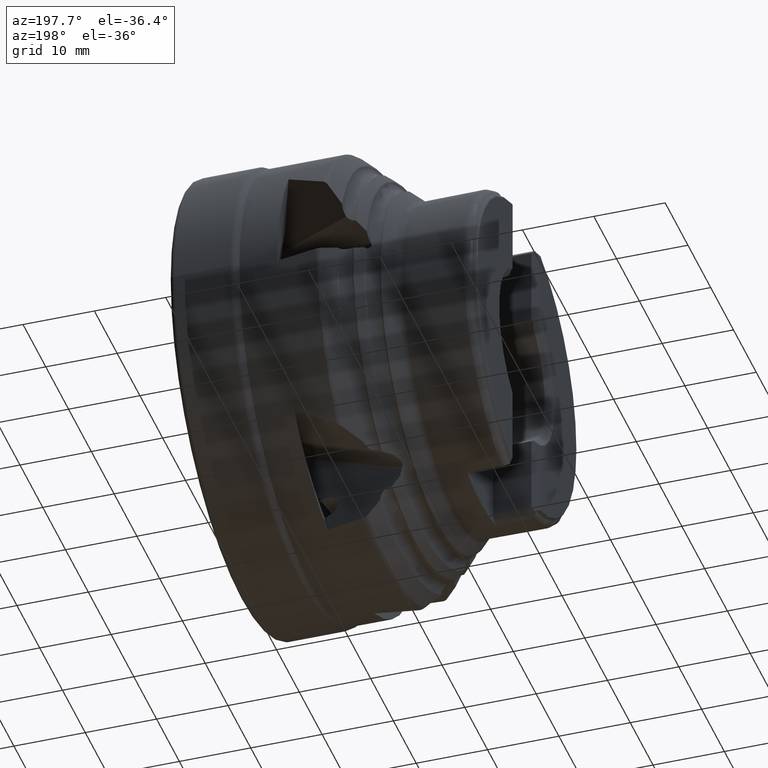
[diagram: clean part render]
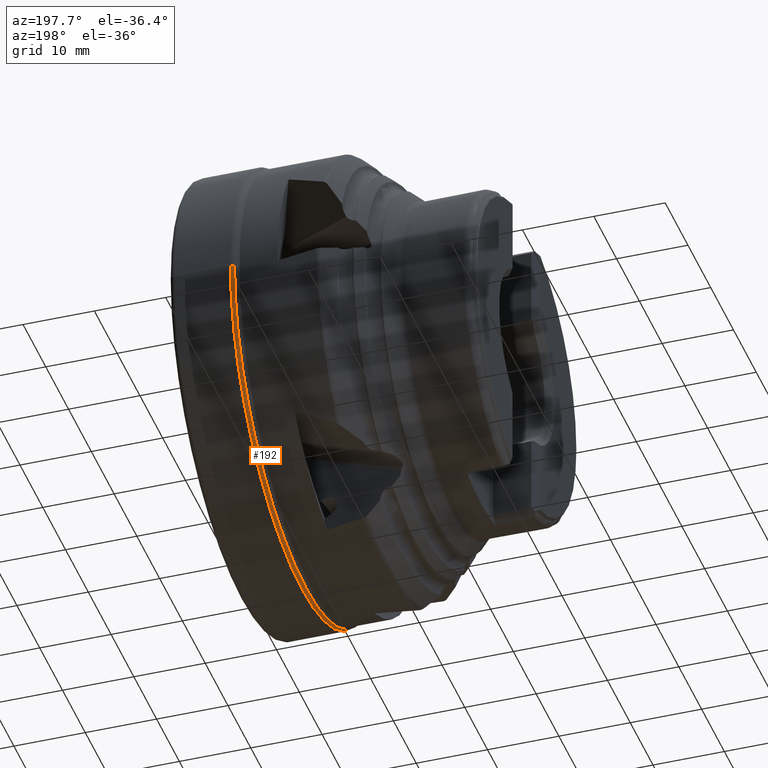
[diagram: same view with one face highlighted and labeled with its STEP entity id]
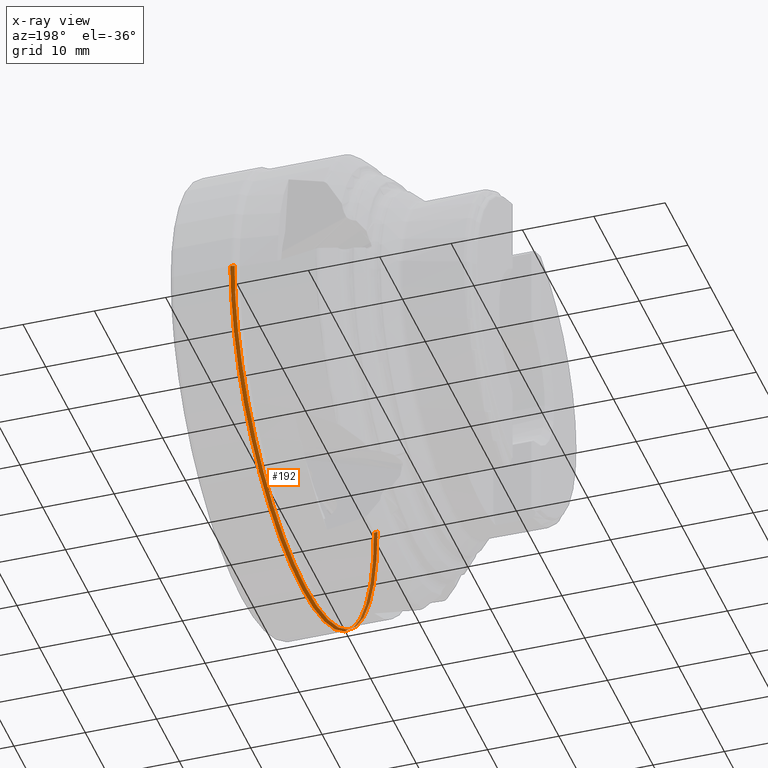
[diagram: x-ray of the same camera — body ghosted, the highlighted face saturated]
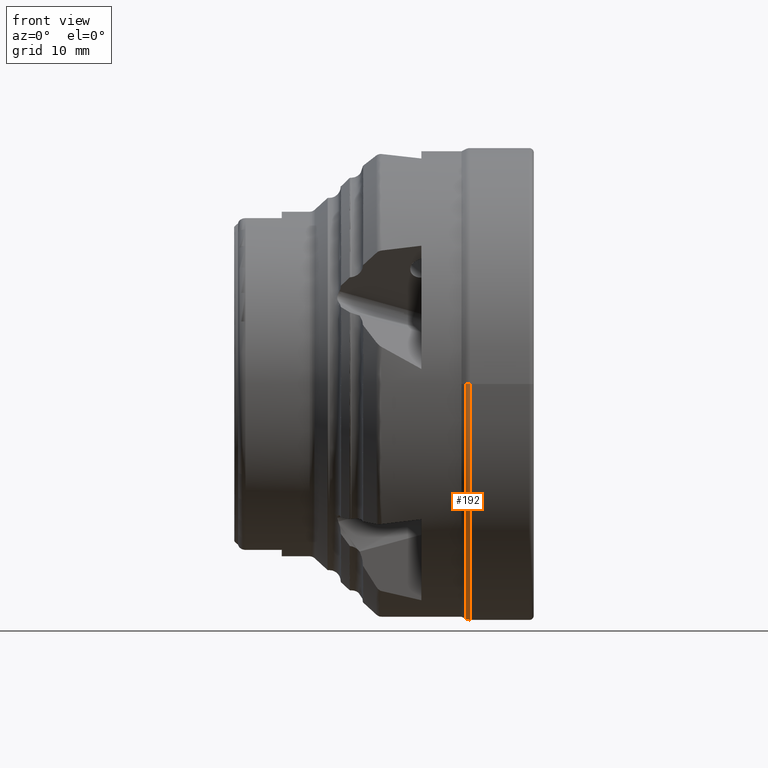
[diagram: same view with one face highlighted and labeled with its STEP entity id]
A machine part, auxiliary view. The second image highlights one B-rep face of the part: STEP entity #192.
The next image is the same camera in x-ray: the body ghosted, the highlighted face saturated — about 16% of this face is hidden behind the body in this view.
A second angle (front view) of the same face is appended — the face is thin or edge-on in the first view.
In plain terms, the highlighted toroidal blend (fillet) surface has major radius 30.3082 mm and minor (blend) radius 1.1918 mm.
Its self-contained STEP definition (entity closure, byte-faithful):
#25 = EDGE_CURVE ( 'NONE', #711, #289, #10463, .T. ) ;
#26 = EDGE_CURVE ( 'NONE', #286, #285, #10472, .T. ) ;
#192 = ADVANCED_FACE ( 'NONE', ( #4185 ), #4226, .T. ) ;
#285 = VERTEX_POINT ( 'NONE', #4743 ) ;
#286 = VERTEX_POINT ( 'NONE', #4744 ) ;
#289 = VERTEX_POINT ( 'NONE', #4747 ) ;
#711 = VERTEX_POINT ( 'NONE', #4807 ) ;
#957 = EDGE_CURVE ( 'NONE', #711, #286, #4330, .T. ) ;
#958 = EDGE_CURVE ( 'NONE', #289, #285, #4336, .T. ) ;
#3096 = EDGE_LOOP ( 'NONE', ( #10731, #10732, #10733, #10734 ) ) ;
#3809 = CARTESIAN_POINT ( 'NONE',  ( -7.316603860505854800, -1.584662297733472800E-015, 0.0000000000000000000 ) ) ;
#3810 = DIRECTION ( 'NONE',  ( 1.000000000000000000, 1.208501380087266900E-016, -0.0000000000000000000 ) ) ;
#3811 = DIRECTION ( 'NONE',  ( -1.105863803725372900E-016, 1.000000000000000000, 0.0000000000000000000 ) ) ;
#3813 = CARTESIAN_POINT ( 'NONE',  ( -6.781626860395060200, -1.520010253438588900E-015, 0.0000000000000000000 ) ) ;
#3814 = DIRECTION ( 'NONE',  ( 1.000000000000000000, 1.208501380087266900E-016, -0.0000000000000000000 ) ) ;
#3815 = DIRECTION ( 'NONE',  ( -1.101411730778924900E-016, 1.000000000000000000, 0.0000000000000000000 ) ) ;
#4183 = DIRECTION ( 'NONE',  ( 1.000000000000000000, 1.208501380087266900E-016, -0.0000000000000000000 ) ) ;
#4185 = FACE_OUTER_BOUND ( 'NONE', #3096, .T. ) ;
#4186 = CARTESIAN_POINT ( 'NONE',  ( -6.781626860395061100, 0.0000000000000000000, 0.0000000000000000000 ) ) ;
#4188 = DIRECTION ( 'NONE',  ( -1.208501380087266900E-016, 1.000000000000000000, 0.0000000000000000000 ) ) ;
#4226 = TOROIDAL_SURFACE ( 'NONE', #4228, 30.30817691498815600, 1.191823085011844800 ) ;
#4228 = AXIS2_PLACEMENT_3D ( 'NONE', #4186, #4183, #4188 ) ;
#4330 = CIRCLE ( 'NONE', #4337, 1.191823085011843000 ) ;
#4336 = CIRCLE ( 'NONE', #4339, 1.191823085011844500 ) ;
#4337 = AXIS2_PLACEMENT_3D ( 'NONE', #4925, #4926, #4927 ) ;
#4339 = AXIS2_PLACEMENT_3D ( 'NONE', #4929, #4930, #4931 ) ;
#4743 = CARTESIAN_POINT ( 'NONE',  ( -6.781626860395063800, 31.50000000000000000, 0.0000000000000000000 ) ) ;
#4744 = CARTESIAN_POINT ( 'NONE',  ( -6.781626860395056700, -31.50000000000000000, 3.857637417314163500E-015 ) ) ;
#4747 = CARTESIAN_POINT ( 'NONE',  ( -7.316603860505858300, 31.37318483764395400, 0.0000000000000000000 ) ) ;
#4807 = CARTESIAN_POINT ( 'NONE',  ( -7.316603860505851200, -31.37318483764395400, 3.842107039047894000E-015 ) ) ;
#4925 = CARTESIAN_POINT ( 'NONE',  ( -6.781626860395057600, -30.30817691498815600, 3.711681184693194800E-015 ) ) ;
#4926 = DIRECTION ( 'NONE',  ( -1.479987346889030300E-032, 1.224646799147353200E-016, 1.000000000000000000 ) ) ;
#4927 = DIRECTION ( 'NONE',  ( 0.0000000000000000000, -1.000000000000000000, 1.224646799147357600E-016 ) ) ;
#4929 = CARTESIAN_POINT ( 'NONE',  ( -6.781626860395064700, 30.30817691498815600, 0.0000000000000000000 ) ) ;
#4930 = DIRECTION ( 'NONE',  ( -0.0000000000000000000, 0.0000000000000000000, -1.000000000000000000 ) ) ;
#4931 = DIRECTION ( 'NONE',  ( -1.000000000000000000, 0.0000000000000000000, 0.0000000000000000000 ) ) ;
#10451 = AXIS2_PLACEMENT_3D ( 'NONE', #3813, #3814, #3815 ) ;
#10455 = AXIS2_PLACEMENT_3D ( 'NONE', #3809, #3810, #3811 ) ;
#10463 = CIRCLE ( 'NONE', #10455, 31.37318483764395400 ) ;
#10472 = CIRCLE ( 'NONE', #10451, 31.50000000000000700 ) ;
#10731 = ORIENTED_EDGE ( 'NONE', *, *, #957, .F. ) ;
#10732 = ORIENTED_EDGE ( 'NONE', *, *, #25, .T. ) ;
#10733 = ORIENTED_EDGE ( 'NONE', *, *, #958, .T. ) ;
#10734 = ORIENTED_EDGE ( 'NONE', *, *, #26, .F. ) ;